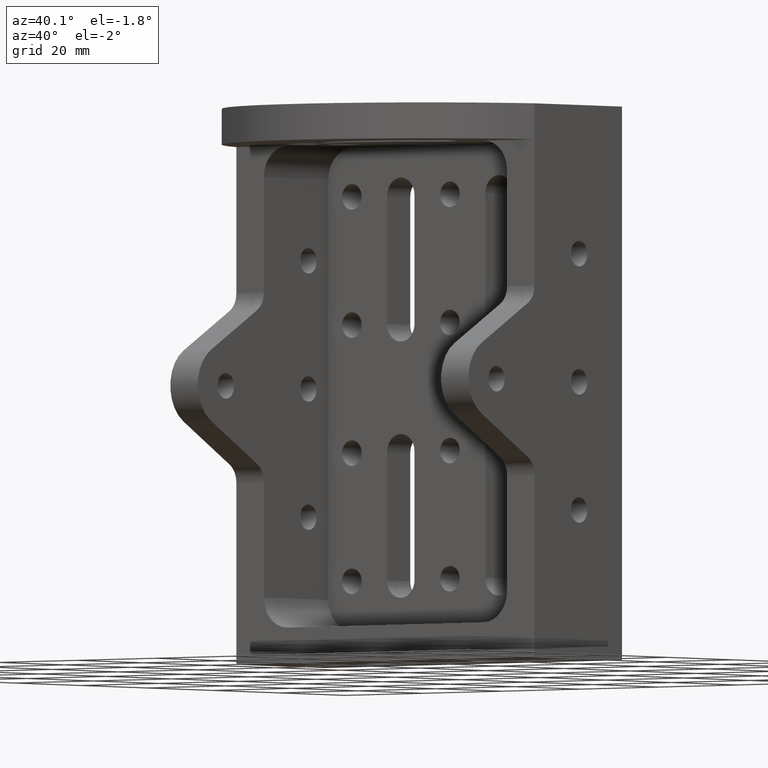
[diagram: clean part render]
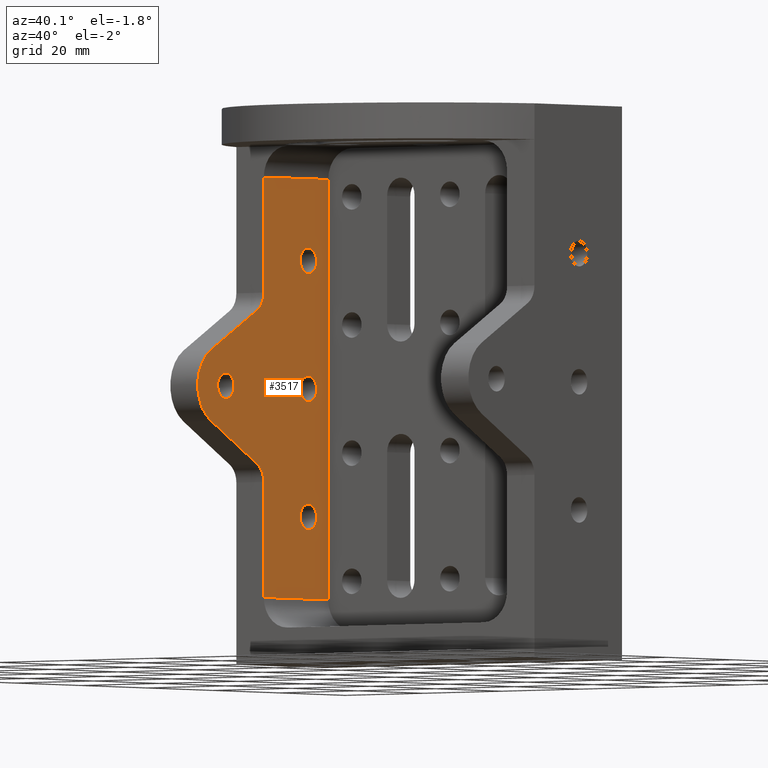
[diagram: same view with one face highlighted and labeled with its STEP entity id]
A machine part, auxiliary view. The second image highlights one B-rep face of the part: STEP entity #3517.
In plain terms, the highlighted planar face has unit normal (-1, 0, 0).
Its self-contained STEP definition (entity closure, byte-faithful):
#7 = CARTESIAN_POINT ( 'NONE',  ( -31.00000000000000000, -26.50332882212206800, 18.48000000000000400 ) ) ;
#13 = ORIENTED_EDGE ( 'NONE', *, *, #1475, .F. ) ;
#33 = EDGE_CURVE ( 'NONE', #1848, #3273, #1559, .T. ) ;
#35 = VECTOR ( 'NONE', #2235, 1000.000000000000000 ) ;
#42 = CARTESIAN_POINT ( 'NONE',  ( -30.99999999999993200, -26.50332882212207200, 40.99999999999943200 ) ) ;
#90 = VERTEX_POINT ( 'NONE', #1459 ) ;
#111 = CARTESIAN_POINT ( 'NONE',  ( -30.99999999999997200, -38.00000000000000700, -2.499999999999983100 ) ) ;
#116 = CIRCLE ( 'NONE', #3345, 2.499999999999986700 ) ;
#117 = CARTESIAN_POINT ( 'NONE',  ( -31.00000000000000000, -28.51232305191474100, 15.00999999999999600 ) ) ;
#157 = VECTOR ( 'NONE', #1469, 1000.000000000000000 ) ;
#189 = ORIENTED_EDGE ( 'NONE', *, *, #2026, .T. ) ;
#243 = DIRECTION ( 'NONE',  ( -1.000000000000000000, 3.367670801987544500E-015, 0.0000000000000000000 ) ) ;
#247 = EDGE_CURVE ( 'NONE', #418, #90, #3568, .T. ) ;
#297 = VECTOR ( 'NONE', #1191, 1000.000000000000000 ) ;
#357 = VERTEX_POINT ( 'NONE', #117 ) ;
#371 = CARTESIAN_POINT ( 'NONE',  ( -30.99999999999997200, -38.49687582450313500, 9.801000403789793100E-016 ) ) ;
#414 = CARTESIAN_POINT ( 'NONE',  ( -31.00000000000000000, -30.50457421569379000, -18.48000000000000000 ) ) ;
#418 = VERTEX_POINT ( 'NONE', #1568 ) ;
#422 = DIRECTION ( 'NONE',  ( -2.775557561562906300E-015, -1.000000000000000000, 0.0000000000000000000 ) ) ;
#467 = DIRECTION ( 'NONE',  ( -1.000000000000000000, 3.367670801987544500E-015, 0.0000000000000000000 ) ) ;
#474 = CIRCLE ( 'NONE', #1034, 4.001245393571728000 ) ;
#476 = EDGE_LOOP ( 'NONE', ( #2094, #2250 ) ) ;
#520 = AXIS2_PLACEMENT_3D ( 'NONE', #371, #3279, #1857 ) ;
#523 = CARTESIAN_POINT ( 'NONE',  ( -30.99999999999989000, -12.99999999999999500, 24.99999999999999600 ) ) ;
#546 = DIRECTION ( 'NONE',  ( -1.000000000000000000, 3.367670801987544500E-015, 0.0000000000000000000 ) ) ;
#560 = DIRECTION ( 'NONE',  ( -3.367670801987544500E-015, -1.000000000000000000, 0.0000000000000000000 ) ) ;
#567 = CARTESIAN_POINT ( 'NONE',  ( -31.00000000000000000, -26.50332882212205700, -18.48000000000000000 ) ) ;
#614 = CARTESIAN_POINT ( 'NONE',  ( -31.00000000000000000, -26.50332882212206400, -3.224119684380701700E-015 ) ) ;
#624 = AXIS2_PLACEMENT_3D ( 'NONE', #1098, #546, #854 ) ;
#628 = CARTESIAN_POINT ( 'NONE',  ( -30.99999999999992500, -25.11201155869140000, 16.97419277140694400 ) ) ;
#686 = AXIS2_PLACEMENT_3D ( 'NONE', #2728, #243, #560 ) ;
#754 = DIRECTION ( 'NONE',  ( -1.000000000000000000, 3.367670801987544500E-015, 0.0000000000000000000 ) ) ;
#771 = AXIS2_PLACEMENT_3D ( 'NONE', #939, #1233, #2367 ) ;
#809 = CARTESIAN_POINT ( 'NONE',  ( -30.99999999999997200, -38.00000000000000700, 2.499999999999986700 ) ) ;
#837 = LINE ( 'NONE', #2826, #3258 ) ;
#845 = EDGE_CURVE ( 'NONE', #2131, #3019, #3015, .T. ) ;
#854 = DIRECTION ( 'NONE',  ( -2.775557561562906300E-015, -1.000000000000000000, 0.0000000000000000000 ) ) ;
#872 = AXIS2_PLACEMENT_3D ( 'NONE', #523, #1983, #2274 ) ;
#874 = EDGE_CURVE ( 'NONE', #1797, #3309, #2925, .T. ) ;
#920 = VERTEX_POINT ( 'NONE', #7 ) ;
#939 = CARTESIAN_POINT ( 'NONE',  ( -30.99999999999989000, -12.99999999999999500, 24.99999999999999600 ) ) ;
#974 = LINE ( 'NONE', #614, #297 ) ;
#978 = AXIS2_PLACEMENT_3D ( 'NONE', #3423, #2018, #2614 ) ;
#1000 = FACE_OUTER_BOUND ( 'NONE', #2516, .T. ) ;
#1012 = CARTESIAN_POINT ( 'NONE',  ( -30.99999999999989000, -13.00000000000000200, -2.499999999999988500 ) ) ;
#1034 = AXIS2_PLACEMENT_3D ( 'NONE', #414, #3009, #3296 ) ;
#1052 = ORIENTED_EDGE ( 'NONE', *, *, #33, .T. ) ;
#1054 = CARTESIAN_POINT ( 'NONE',  ( -30.99999999999989000, -12.99999999999999500, 27.49999999999998200 ) ) ;
#1068 = CARTESIAN_POINT ( 'NONE',  ( -30.99999999999986900, -6.999999999999437800, -40.99999999999997900 ) ) ;
#1091 = FACE_BOUND ( 'NONE', #1130, .T. ) ;
#1098 = CARTESIAN_POINT ( 'NONE',  ( -30.99999999999989000, -13.00000000000000200, -1.734723475976807100E-015 ) ) ;
#1130 = EDGE_LOOP ( 'NONE', ( #3621, #2466 ) ) ;
#1152 = CARTESIAN_POINT ( 'NONE',  ( -30.99999999999989000, -13.00000000000000200, -27.49999999999998900 ) ) ;
#1191 = DIRECTION ( 'NONE',  ( 0.0000000000000000000, 1.216496126210969100E-016, -1.000000000000000000 ) ) ;
#1202 = LINE ( 'NONE', #1205, #2604 ) ;
#1203 = EDGE_CURVE ( 'NONE', #3019, #2131, #3145, .T. ) ;
#1205 = CARTESIAN_POINT ( 'NONE',  ( -31.00000000000000000, -6.999999999999434200, 46.99999999999946000 ) ) ;
#1223 = ORIENTED_EDGE ( 'NONE', *, *, #3539, .T. ) ;
#1230 = VERTEX_POINT ( 'NONE', #3344 ) ;
#1233 = DIRECTION ( 'NONE',  ( -1.000000000000000000, 3.367670801987544500E-015, 0.0000000000000000000 ) ) ;
#1234 = DIRECTION ( 'NONE',  ( 1.000000000000000000, 0.0000000000000000000, 0.0000000000000000000 ) ) ;
#1246 = DIRECTION ( 'NONE',  ( 0.0000000000000000000, 0.0000000000000000000, -1.000000000000000000 ) ) ;
#1250 = LINE ( 'NONE', #1957, #2148 ) ;
#1260 = EDGE_CURVE ( 'NONE', #3309, #1797, #1893, .T. ) ;
#1264 = AXIS2_PLACEMENT_3D ( 'NONE', #2954, #1234, #1246 ) ;
#1330 = CARTESIAN_POINT ( 'NONE',  ( -30.99999999999989000, -13.00000000000000200, -25.00000000000000400 ) ) ;
#1341 = EDGE_CURVE ( 'NONE', #1843, #1848, #1250, .T. ) ;
#1459 = CARTESIAN_POINT ( 'NONE',  ( -31.00000000000000000, -26.50332882212206800, 40.99999999999943200 ) ) ;
#1466 = DIRECTION ( 'NONE',  ( -2.916108864622977100E-015, -0.8659126844886195800, -0.5001951847446276500 ) ) ;
#1469 = DIRECTION ( 'NONE',  ( -3.367670801987544500E-015, -1.000000000000000000, 0.0000000000000000000 ) ) ;
#1475 = EDGE_CURVE ( 'NONE', #1843, #1230, #474, .T. ) ;
#1493 = DIRECTION ( 'NONE',  ( -0.0000000000000000000, -0.0000000000000000000, 1.000000000000000000 ) ) ;
#1559 = LINE ( 'NONE', #1068, #35 ) ;
#1568 = CARTESIAN_POINT ( 'NONE',  ( -31.00000000000000000, -6.999999999999434200, 40.99999999999943200 ) ) ;
#1588 = DIRECTION ( 'NONE',  ( 2.916108864622977100E-015, 0.8659126844886195800, -0.5001951847446279900 ) ) ;
#1650 = VERTEX_POINT ( 'NONE', #1054 ) ;
#1661 = PLANE ( 'NONE',  #686 ) ;
#1750 = DIRECTION ( 'NONE',  ( -2.775557561562904400E-015, -1.000000000000000000, 0.0000000000000000000 ) ) ;
#1767 = FACE_BOUND ( 'NONE', #476, .T. ) ;
#1783 = CIRCLE ( 'NONE', #1264, 4.001245393571728000 ) ;
#1797 = VERTEX_POINT ( 'NONE', #809 ) ;
#1802 = VERTEX_POINT ( 'NONE', #3391 ) ;
#1806 = EDGE_LOOP ( 'NONE', ( #2934, #3204 ) ) ;
#1843 = VERTEX_POINT ( 'NONE', #567 ) ;
#1848 = VERTEX_POINT ( 'NONE', #2872 ) ;
#1857 = DIRECTION ( 'NONE',  ( -3.468092585718979900E-015, -1.000000000000000000, -5.329070518200749800E-015 ) ) ;
#1875 = EDGE_CURVE ( 'NONE', #357, #1802, #3086, .T. ) ;
#1893 = CIRCLE ( 'NONE', #3508, 2.499999999999988500 ) ;
#1909 = ORIENTED_EDGE ( 'NONE', *, *, #2416, .T. ) ;
#1915 = CIRCLE ( 'NONE', #520, 8.003124175496839900 ) ;
#1957 = CARTESIAN_POINT ( 'NONE',  ( -31.00000000000000000, -26.50332882212206100, 0.0000000000000000000 ) ) ;
#1983 = DIRECTION ( 'NONE',  ( -1.000000000000000000, 3.367670801987544500E-015, 0.0000000000000000000 ) ) ;
#2006 = VERTEX_POINT ( 'NONE', #2684 ) ;
#2018 = DIRECTION ( 'NONE',  ( -1.000000000000000000, 3.367670801987544500E-015, 0.0000000000000000000 ) ) ;
#2026 = EDGE_CURVE ( 'NONE', #1650, #3588, #2731, .T. ) ;
#2028 = VERTEX_POINT ( 'NONE', #2943 ) ;
#2094 = ORIENTED_EDGE ( 'NONE', *, *, #3072, .T. ) ;
#2100 = CARTESIAN_POINT ( 'NONE',  ( -30.99999999999989000, -13.00000000000000200, -22.50000000000002100 ) ) ;
#2110 = ORIENTED_EDGE ( 'NONE', *, *, #2791, .F. ) ;
#2120 = EDGE_CURVE ( 'NONE', #1802, #2006, #1915, .T. ) ;
#2131 = VERTEX_POINT ( 'NONE', #2100 ) ;
#2148 = VECTOR ( 'NONE', #2851, 1000.000000000000000 ) ;
#2151 = AXIS2_PLACEMENT_3D ( 'NONE', #2288, #3473, #1750 ) ;
#2161 = CARTESIAN_POINT ( 'NONE',  ( -30.99999999999989000, -13.00000000000000200, -1.734723475976807100E-015 ) ) ;
#2212 = CARTESIAN_POINT ( 'NONE',  ( -30.99999999999997200, -38.00000000000000700, 1.734723475976807100E-015 ) ) ;
#2235 = DIRECTION ( 'NONE',  ( 3.367670801987544500E-015, 1.000000000000000000, 1.476360405086627500E-016 ) ) ;
#2241 = ORIENTED_EDGE ( 'NONE', *, *, #1875, .T. ) ;
#2250 = ORIENTED_EDGE ( 'NONE', *, *, #2356, .T. ) ;
#2271 = ORIENTED_EDGE ( 'NONE', *, *, #2120, .T. ) ;
#2274 = DIRECTION ( 'NONE',  ( -2.775557561562906300E-015, -1.000000000000000000, 0.0000000000000000000 ) ) ;
#2288 = CARTESIAN_POINT ( 'NONE',  ( -30.99999999999997200, -38.00000000000000700, 1.734723475976807100E-015 ) ) ;
#2316 = VECTOR ( 'NONE', #1466, 1000.000000000000200 ) ;
#2348 = ORIENTED_EDGE ( 'NONE', *, *, #2843, .T. ) ;
#2356 = EDGE_CURVE ( 'NONE', #2458, #2028, #116, .T. ) ;
#2367 = DIRECTION ( 'NONE',  ( -2.775557561562906300E-015, -1.000000000000000000, 0.0000000000000000000 ) ) ;
#2416 = EDGE_CURVE ( 'NONE', #90, #920, #974, .T. ) ;
#2440 = ORIENTED_EDGE ( 'NONE', *, *, #247, .T. ) ;
#2458 = VERTEX_POINT ( 'NONE', #1012 ) ;
#2464 = ORIENTED_EDGE ( 'NONE', *, *, #3393, .T. ) ;
#2466 = ORIENTED_EDGE ( 'NONE', *, *, #1260, .T. ) ;
#2485 = DIRECTION ( 'NONE',  ( -1.000000000000000000, 3.367670801987544500E-015, 0.0000000000000000000 ) ) ;
#2516 = EDGE_LOOP ( 'NONE', ( #2348, #2440, #1909, #2110, #2241, #2271, #2464, #13, #2844, #1052 ) ) ;
#2544 = FACE_BOUND ( 'NONE', #1806, .T. ) ;
#2604 = VECTOR ( 'NONE', #1493, 1000.000000000000000 ) ;
#2614 = DIRECTION ( 'NONE',  ( -2.775557561562906300E-015, -1.000000000000000000, 0.0000000000000000000 ) ) ;
#2684 = CARTESIAN_POINT ( 'NONE',  ( -30.99999999999997900, -42.49999999999997900, -6.930006739100238500 ) ) ;
#2728 = CARTESIAN_POINT ( 'NONE',  ( -31.00000000000000000, -46.49999999999997200, 54.00000000000000000 ) ) ;
#2731 = CIRCLE ( 'NONE', #771, 2.499999999999986700 ) ;
#2737 = CIRCLE ( 'NONE', #624, 2.499999999999986700 ) ;
#2789 = DIRECTION ( 'NONE',  ( -2.775557561562906300E-015, -1.000000000000000000, 0.0000000000000000000 ) ) ;
#2791 = EDGE_CURVE ( 'NONE', #357, #920, #1783, .T. ) ;
#2826 = CARTESIAN_POINT ( 'NONE',  ( -31.00000000000008500, -71.88954991926557600, 10.04689129549800300 ) ) ;
#2843 = EDGE_CURVE ( 'NONE', #3273, #418, #1202, .T. ) ;
#2844 = ORIENTED_EDGE ( 'NONE', *, *, #1341, .T. ) ;
#2851 = DIRECTION ( 'NONE',  ( 0.0000000000000000000, -0.0000000000000000000, -1.000000000000000000 ) ) ;
#2872 = CARTESIAN_POINT ( 'NONE',  ( -31.00000000000000000, -26.50332882212206100, -40.99999999999997900 ) ) ;
#2925 = CIRCLE ( 'NONE', #2151, 2.499999999999988500 ) ;
#2934 = ORIENTED_EDGE ( 'NONE', *, *, #845, .T. ) ;
#2939 = FACE_BOUND ( 'NONE', #3405, .T. ) ;
#2942 = CARTESIAN_POINT ( 'NONE',  ( -30.99999999999989000, -12.99999999999999500, 22.50000000000001400 ) ) ;
#2943 = CARTESIAN_POINT ( 'NONE',  ( -30.99999999999989000, -13.00000000000000200, 2.499999999999984900 ) ) ;
#2954 = CARTESIAN_POINT ( 'NONE',  ( -31.00000000000000000, -30.50457421569379300, 18.47999999999999300 ) ) ;
#3009 = DIRECTION ( 'NONE',  ( 1.000000000000000000, 0.0000000000000000000, 0.0000000000000000000 ) ) ;
#3015 = CIRCLE ( 'NONE', #978, 2.499999999999986700 ) ;
#3019 = VERTEX_POINT ( 'NONE', #1152 ) ;
#3037 = CIRCLE ( 'NONE', #872, 2.499999999999986700 ) ;
#3072 = EDGE_CURVE ( 'NONE', #2028, #2458, #2737, .T. ) ;
#3086 = LINE ( 'NONE', #628, #2316 ) ;
#3145 = CIRCLE ( 'NONE', #3559, 2.499999999999986700 ) ;
#3188 = CARTESIAN_POINT ( 'NONE',  ( -31.00000000000000000, -6.999999999999434200, -40.99999999999995000 ) ) ;
#3204 = ORIENTED_EDGE ( 'NONE', *, *, #1203, .T. ) ;
#3258 = VECTOR ( 'NONE', #1588, 999.9999999999998900 ) ;
#3273 = VERTEX_POINT ( 'NONE', #3188 ) ;
#3279 = DIRECTION ( 'NONE',  ( 1.000000000000000000, -3.367670801987544500E-015, -0.0000000000000000000 ) ) ;
#3296 = DIRECTION ( 'NONE',  ( 0.0000000000000000000, 0.0000000000000000000, -1.000000000000000000 ) ) ;
#3309 = VERTEX_POINT ( 'NONE', #111 ) ;
#3344 = CARTESIAN_POINT ( 'NONE',  ( -31.00000000000000000, -28.51232305191474100, -15.00999999999999800 ) ) ;
#3345 = AXIS2_PLACEMENT_3D ( 'NONE', #2161, #754, #422 ) ;
#3369 = DIRECTION ( 'NONE',  ( -2.775557561562904400E-015, -1.000000000000000000, 0.0000000000000000000 ) ) ;
#3391 = CARTESIAN_POINT ( 'NONE',  ( -31.00000000000000000, -42.49999999999997900, 6.930006739100242000 ) ) ;
#3393 = EDGE_CURVE ( 'NONE', #2006, #1230, #837, .T. ) ;
#3405 = EDGE_LOOP ( 'NONE', ( #189, #1223 ) ) ;
#3423 = CARTESIAN_POINT ( 'NONE',  ( -30.99999999999989000, -13.00000000000000200, -25.00000000000000400 ) ) ;
#3473 = DIRECTION ( 'NONE',  ( -1.000000000000000000, 3.367670801987544500E-015, 0.0000000000000000000 ) ) ;
#3508 = AXIS2_PLACEMENT_3D ( 'NONE', #2212, #2485, #3369 ) ;
#3517 = ADVANCED_FACE ( 'NONE', ( #1091, #2544, #1767, #2939, #1000 ), #1661, .F. ) ;
#3539 = EDGE_CURVE ( 'NONE', #3588, #1650, #3037, .T. ) ;
#3559 = AXIS2_PLACEMENT_3D ( 'NONE', #1330, #467, #2789 ) ;
#3568 = LINE ( 'NONE', #42, #157 ) ;
#3588 = VERTEX_POINT ( 'NONE', #2942 ) ;
#3621 = ORIENTED_EDGE ( 'NONE', *, *, #874, .T. ) ;